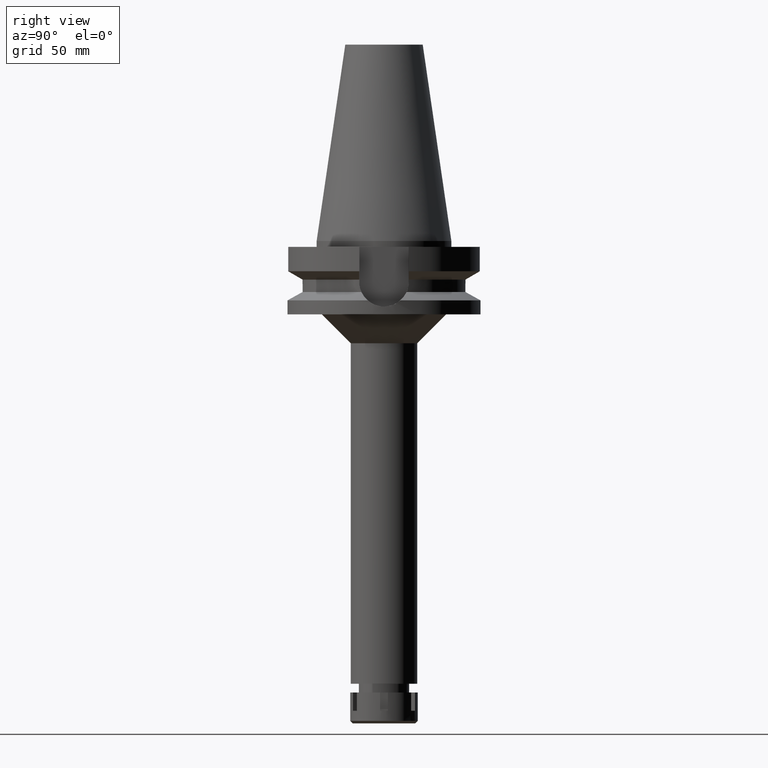
[diagram: clean part render]
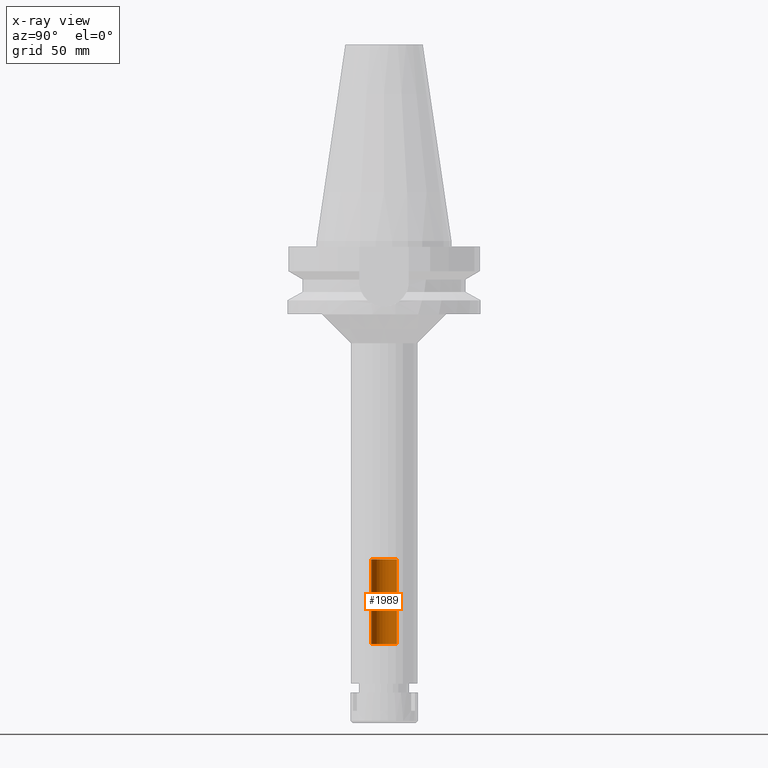
[diagram: x-ray — body ghosted, one internal face saturated and labeled with its STEP entity id]
A machine part, right view, then the same camera in x-ray: the body is ghosted and one INTERNAL B-rep face — a face not visible from any outside direction — is saturated and labeled: STEP entity #1989.
In plain terms, the highlighted cylindrical surface (edge-blend (fillet) strip) has radius 6.65 mm, axis along (0, 0, -1).
Its self-contained STEP definition (entity closure, byte-faithful):
#45 = VERTEX_POINT ( 'NONE', #3454 ) ;
#86 = CARTESIAN_POINT ( 'NONE',  ( 0.0000000000000000000, 6.649999999999999467, -165.0000000000000000 ) ) ;
#131 = CYLINDRICAL_SURFACE ( 'NONE', #1536, 6.649999999999999467 ) ;
#149 = VERTEX_POINT ( 'NONE', #2504 ) ;
#155 = DIRECTION ( 'NONE',  ( 0.0000000000000000000, 0.0000000000000000000, -1.000000000000000000 ) ) ;
#235 = AXIS2_PLACEMENT_3D ( 'NONE', #299, #3093, #2788 ) ;
#299 = CARTESIAN_POINT ( 'NONE',  ( 0.0000000000000000000, 2.681854025452999794E-14, -165.0000000000000000 ) ) ;
#399 = ORIENTED_EDGE ( 'NONE', *, *, #434, .T. ) ;
#408 = CARTESIAN_POINT ( 'NONE',  ( 0.0000000000000000000, 2.681854025452999794E-14, 118.9899999999999949 ) ) ;
#423 = LINE ( 'NONE', #1841, #2208 ) ;
#434 = EDGE_CURVE ( 'NONE', #2383, #45, #1716, .T. ) ;
#447 = ORIENTED_EDGE ( 'NONE', *, *, #3375, .T. ) ;
#1228 = DIRECTION ( 'NONE',  ( 0.0000000000000000000, -1.000000000000000000, 0.0000000000000000000 ) ) ;
#1287 = CIRCLE ( 'NONE', #1406, 6.649999999999999467 ) ;
#1359 = ORIENTED_EDGE ( 'NONE', *, *, #1620, .T. ) ;
#1404 = EDGE_LOOP ( 'NONE', ( #399, #3023, #447, #1359 ) ) ;
#1406 = AXIS2_PLACEMENT_3D ( 'NONE', #1718, #1482, #3133 ) ;
#1482 = DIRECTION ( 'NONE',  ( 0.0000000000000000000, 0.0000000000000000000, -1.000000000000000000 ) ) ;
#1536 = AXIS2_PLACEMENT_3D ( 'NONE', #408, #155, #1228 ) ;
#1620 = EDGE_CURVE ( 'NONE', #149, #2383, #2170, .T. ) ;
#1716 = CIRCLE ( 'NONE', #235, 6.649999999999999467 ) ;
#1718 = CARTESIAN_POINT ( 'NONE',  ( 0.0000000000000000000, 2.681854025452999794E-14, -209.0000000000000000 ) ) ;
#1841 = CARTESIAN_POINT ( 'NONE',  ( 0.0000000000000000000, -6.649999999999999467, -209.0000000000000000 ) ) ;
#1989 = ADVANCED_FACE ( 'NONE', ( #2679 ), #131, .F. ) ;
#2170 = LINE ( 'NONE', #3319, #2275 ) ;
#2208 = VECTOR ( 'NONE', #2627, 1000.000000000000000 ) ;
#2275 = VECTOR ( 'NONE', #2982, 1000.000000000000000 ) ;
#2383 = VERTEX_POINT ( 'NONE', #86 ) ;
#2504 = CARTESIAN_POINT ( 'NONE',  ( 0.0000000000000000000, 6.649999999999999467, -209.0000000000000000 ) ) ;
#2627 = DIRECTION ( 'NONE',  ( 0.0000000000000000000, 0.0000000000000000000, 1.000000000000000000 ) ) ;
#2679 = FACE_OUTER_BOUND ( 'NONE', #1404, .T. ) ;
#2788 = DIRECTION ( 'NONE',  ( 0.0000000000000000000, 1.000000000000000000, 0.0000000000000000000 ) ) ;
#2982 = DIRECTION ( 'NONE',  ( 0.0000000000000000000, 0.0000000000000000000, 1.000000000000000000 ) ) ;
#2995 = VERTEX_POINT ( 'NONE', #3510 ) ;
#3023 = ORIENTED_EDGE ( 'NONE', *, *, #3553, .F. ) ;
#3093 = DIRECTION ( 'NONE',  ( 0.0000000000000000000, 0.0000000000000000000, 1.000000000000000000 ) ) ;
#3133 = DIRECTION ( 'NONE',  ( 0.0000000000000000000, -1.000000000000000000, 0.0000000000000000000 ) ) ;
#3319 = CARTESIAN_POINT ( 'NONE',  ( 0.0000000000000000000, 6.649999999999999467, -209.0000000000000000 ) ) ;
#3375 = EDGE_CURVE ( 'NONE', #2995, #149, #1287, .T. ) ;
#3454 = CARTESIAN_POINT ( 'NONE',  ( 0.0000000000000000000, -6.649999999999999467, -165.0000000000000000 ) ) ;
#3510 = CARTESIAN_POINT ( 'NONE',  ( 0.0000000000000000000, -6.649999999999999467, -209.0000000000000000 ) ) ;
#3553 = EDGE_CURVE ( 'NONE', #2995, #45, #423, .T. ) ;